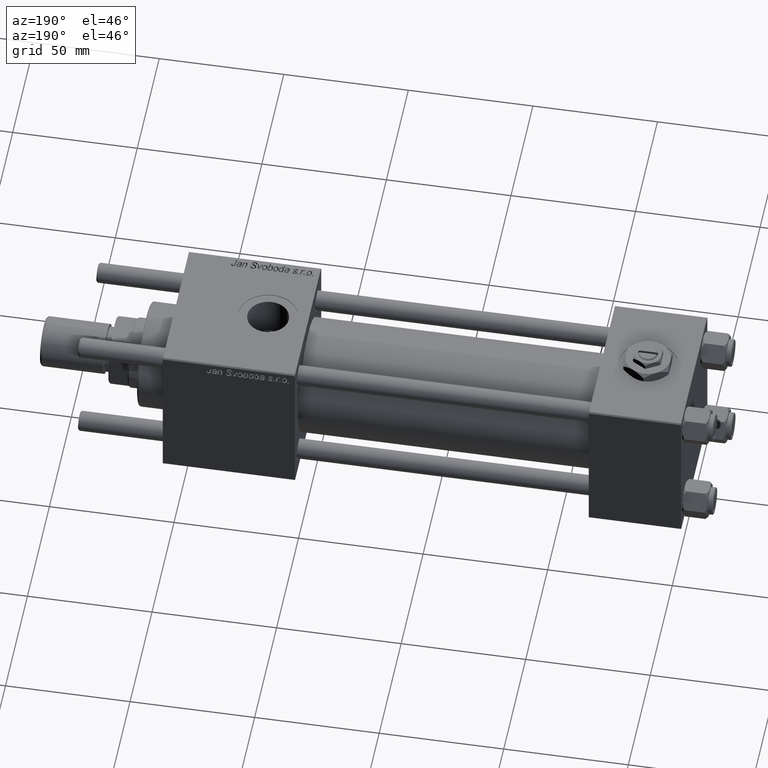
[diagram: clean part render]
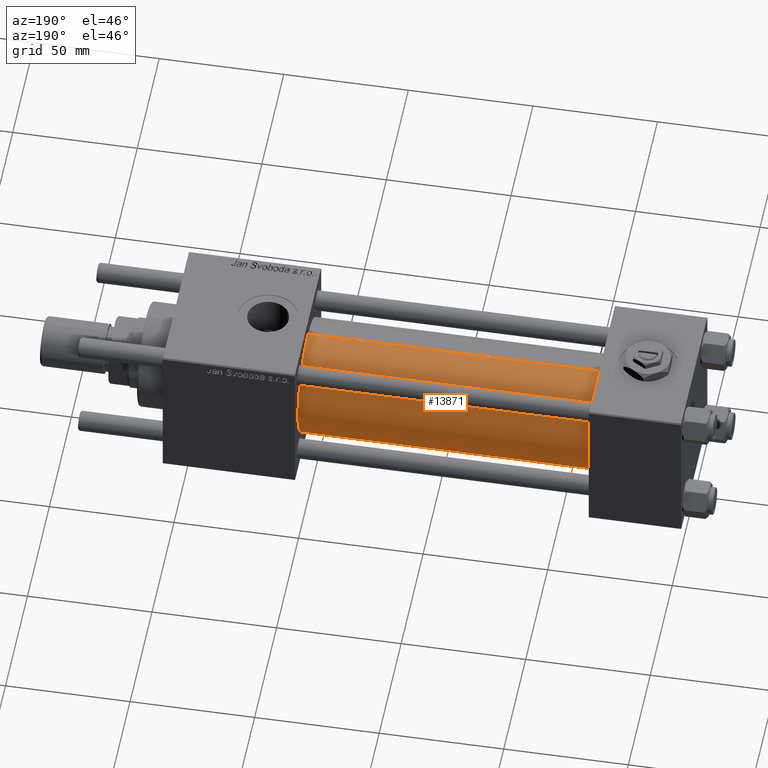
[diagram: same view with one face highlighted and labeled with its STEP entity id]
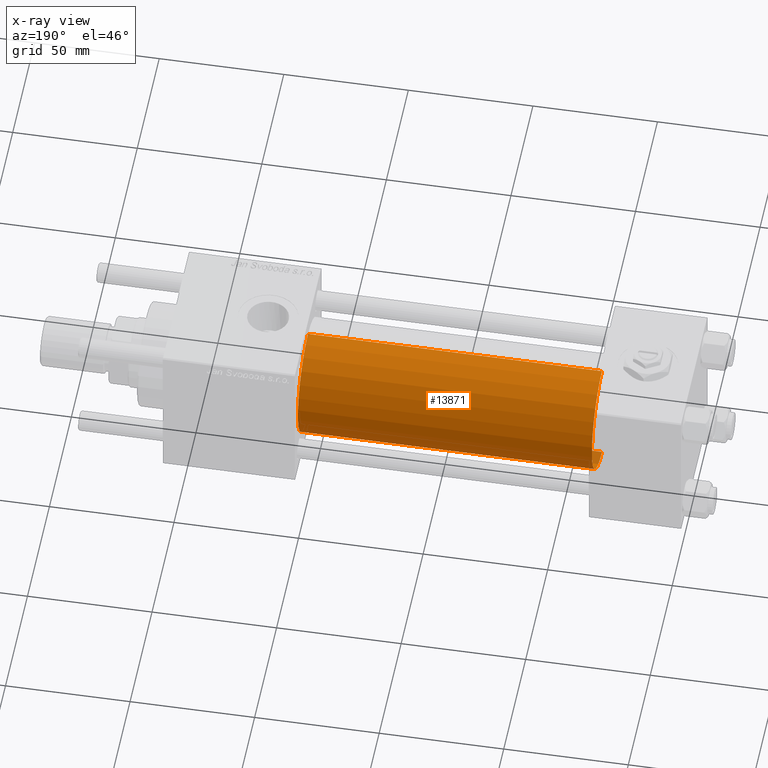
[diagram: x-ray of the same camera — body ghosted, the highlighted face saturated]
A machine part, auxiliary view. The second image highlights one B-rep face of the part: STEP entity #13871.
The next image is the same camera in x-ray: the body ghosted, the highlighted face saturated — about 0% of this face is hidden behind the body in this view.
In plain terms, the highlighted cylindrical surface (partial cylindrical patch) has radius 23 mm, axis along (-1, -0, -0).
Its self-contained STEP definition (entity closure, byte-faithful):
#232 = CYLINDRICAL_SURFACE ( 'NONE', #25757, 23.00000000000000000 ) ;
#1470 = DIRECTION ( 'NONE',  ( 0.000000000000000000, 0.000000000000000000, 1.000000000000000000 ) ) ;
#1512 = EDGE_CURVE ( 'NONE', #47773, #26151, #19121, .T. ) ;
#7222 = DIRECTION ( 'NONE',  ( 0.000000000000000000, 0.000000000000000000, -1.000000000000000000 ) ) ;
#9211 = FACE_OUTER_BOUND ( 'NONE', #37209, .T. ) ;
#9517 = DIRECTION ( 'NONE',  ( -1.000000000000000000, -0.000000000000000000, -0.000000000000000000 ) ) ;
#9901 = CARTESIAN_POINT ( 'NONE',  ( 155.0000000000000000, 2.146024240737016609E-16, -23.00000000000000000 ) ) ;
#10411 = CIRCLE ( 'NONE', #48785, 23.00000000000000000 ) ;
#11159 = CARTESIAN_POINT ( 'NONE',  ( 155.0000000000000000, -2.602085213965210642E-15, 23.00000000000000000 ) ) ;
#11574 = VERTEX_POINT ( 'NONE', #11159 ) ;
#11888 = CARTESIAN_POINT ( 'NONE',  ( 37.00000000000000711, 2.146024240737016609E-16, -23.00000000000000000 ) ) ;
#13409 = EDGE_CURVE ( 'NONE', #47773, #11574, #10411, .T. ) ;
#13871 = ADVANCED_FACE ( 'NONE', ( #9211 ), #232, .T. ) ;
#18523 = DIRECTION ( 'NONE',  ( -1.000000000000000000, -0.000000000000000000, -0.000000000000000000 ) ) ;
#19121 = LINE ( 'NONE', #41033, #23579 ) ;
#19938 = CARTESIAN_POINT ( 'NONE',  ( 155.0000000000000000, -2.602085213965210642E-15, 23.00000000000000000 ) ) ;
#20256 = AXIS2_PLACEMENT_3D ( 'NONE', #27653, #32446, #1470 ) ;
#22618 = ORIENTED_EDGE ( 'NONE', *, *, #52415, .F. ) ;
#23579 = VECTOR ( 'NONE', #9517, 1000.000000000000000 ) ;
#23781 = ORIENTED_EDGE ( 'NONE', *, *, #1512, .T. ) ;
#24625 = DIRECTION ( 'NONE',  ( 1.000000000000000000, 0.000000000000000000, 0.000000000000000000 ) ) ;
#24662 = EDGE_CURVE ( 'NONE', #26151, #32255, #46132, .T. ) ;
#25757 = AXIS2_PLACEMENT_3D ( 'NONE', #32306, #18523, #36813 ) ;
#26151 = VERTEX_POINT ( 'NONE', #11888 ) ;
#27653 = CARTESIAN_POINT ( 'NONE',  ( 37.00000000000000711, -2.602085213965210642E-15, 0.000000000000000000 ) ) ;
#32255 = VERTEX_POINT ( 'NONE', #33043 ) ;
#32306 = CARTESIAN_POINT ( 'NONE',  ( 155.0000000000000000, -2.602085213965210642E-15, 0.000000000000000000 ) ) ;
#32446 = DIRECTION ( 'NONE',  ( 1.000000000000000000, -0.000000000000000000, 0.000000000000000000 ) ) ;
#33043 = CARTESIAN_POINT ( 'NONE',  ( 37.00000000000000711, -2.602085213965210642E-15, 23.00000000000000000 ) ) ;
#34210 = CARTESIAN_POINT ( 'NONE',  ( 155.0000000000000000, -2.602085213965210642E-15, 0.000000000000000000 ) ) ;
#36813 = DIRECTION ( 'NONE',  ( 0.000000000000000000, 0.000000000000000000, 1.000000000000000000 ) ) ;
#37209 = EDGE_LOOP ( 'NONE', ( #59282, #23781, #43349, #22618 ) ) ;
#38532 = LINE ( 'NONE', #19938, #46024 ) ;
#41033 = CARTESIAN_POINT ( 'NONE',  ( 155.0000000000000000, 2.146024240737016609E-16, -23.00000000000000000 ) ) ;
#43349 = ORIENTED_EDGE ( 'NONE', *, *, #24662, .T. ) ;
#46024 = VECTOR ( 'NONE', #51763, 1000.000000000000000 ) ;
#46132 = CIRCLE ( 'NONE', #20256, 23.00000000000000000 ) ;
#47773 = VERTEX_POINT ( 'NONE', #9901 ) ;
#48785 = AXIS2_PLACEMENT_3D ( 'NONE', #34210, #24625, #7222 ) ;
#51763 = DIRECTION ( 'NONE',  ( -1.000000000000000000, -0.000000000000000000, -0.000000000000000000 ) ) ;
#52415 = EDGE_CURVE ( 'NONE', #11574, #32255, #38532, .T. ) ;
#59282 = ORIENTED_EDGE ( 'NONE', *, *, #13409, .F. ) ;